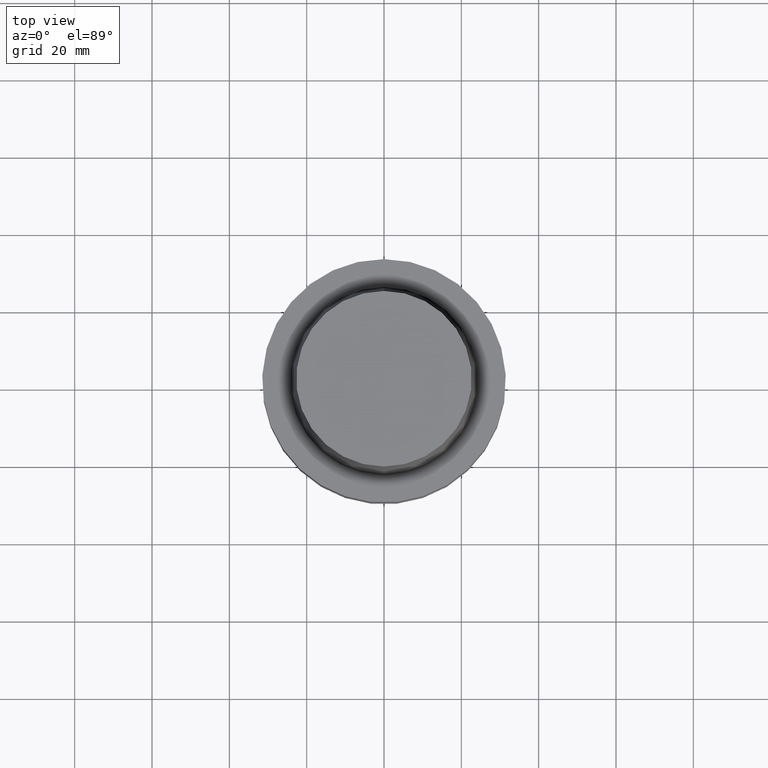
[diagram: clean part render]
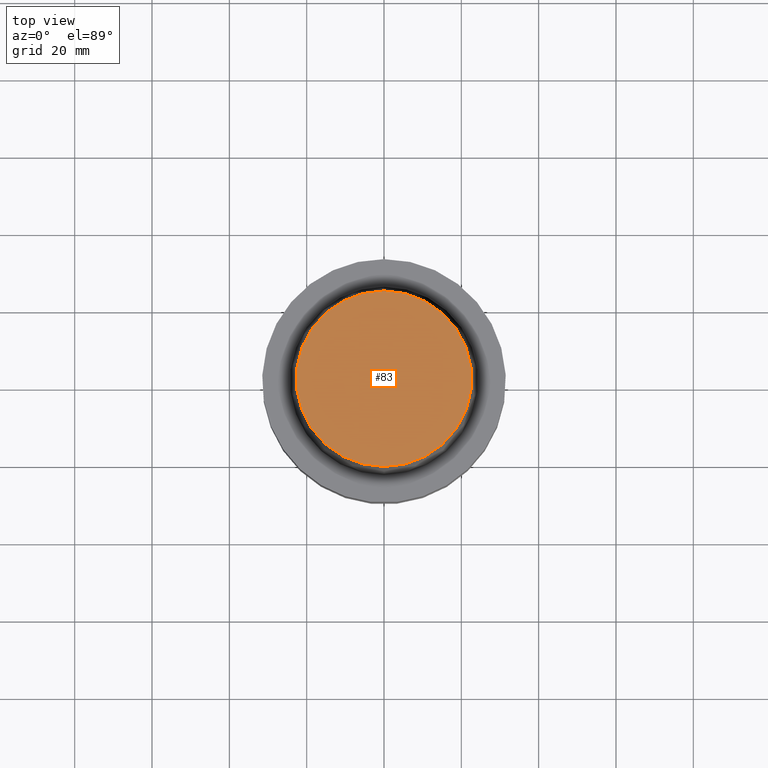
[diagram: same view with one face highlighted and labeled with its STEP entity id]
A machine part, top view. The second image highlights one B-rep face of the part: STEP entity #83.
In plain terms, the highlighted planar face has unit normal (-0, 0, 1).
Its self-contained STEP definition (entity closure, byte-faithful):
#83=ADVANCED_FACE('Unnamed[1]',(#219),#220,.T.);
#176=EDGE_CURVE('Unnamed[1]',#364,#364,#365,.T.);
#219=FACE_OUTER_BOUND('',#411,.T.);
#220=PLANE('',#412);
#364=VERTEX_POINT('',#591);
#365=CIRCLE('',#592,22.715);
#411=EDGE_LOOP('',(#632));
#412=AXIS2_PLACEMENT_3D('',#633,#634,#635);
#591=CARTESIAN_POINT('',(-1.95943487863576E-015,22.715,32.0));
#592=AXIS2_PLACEMENT_3D('',#796,#797,#798);
#632=ORIENTED_EDGE('',*,*,#176,.T.);
#633=CARTESIAN_POINT('',(-1.95943487863576E-015,11.3575,32.0));
#634=DIRECTION('',(-6.12323399573677E-017,9.72362339746437E-016,1.0));
#635=DIRECTION('',(5.47128686183263E-032,1.0,-9.72362339746437E-016));
#796=CARTESIAN_POINT('',(-1.95943487863576E-015,-3.91886975727153E-015,32.0));
#797=DIRECTION('',(-6.12323399573676E-017,-1.22464679914735E-016,1.0));
#798=DIRECTION('',(-1.23259516440783E-032,1.0,1.22464679914735E-016));